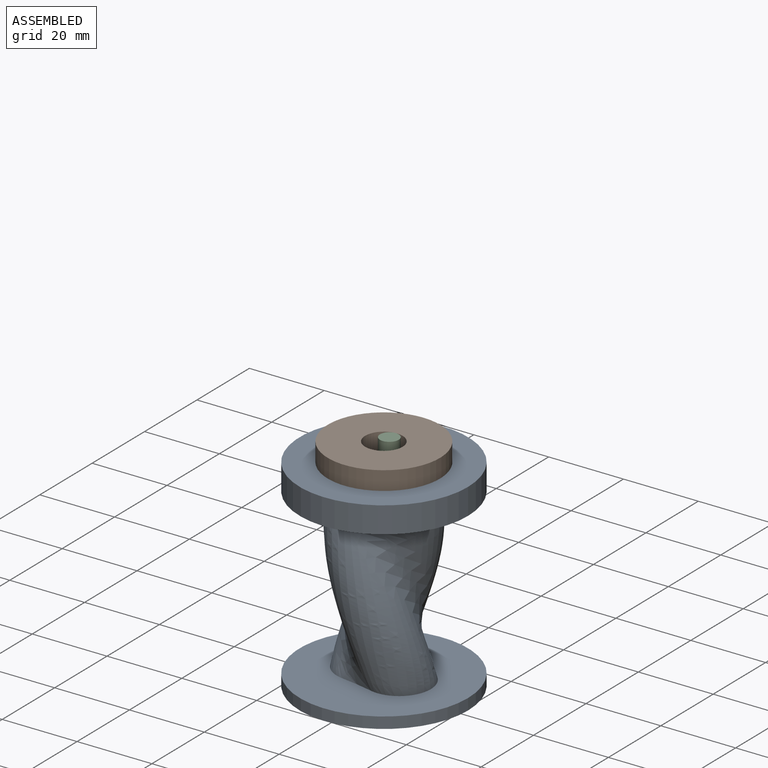
[diagram: assembled view]
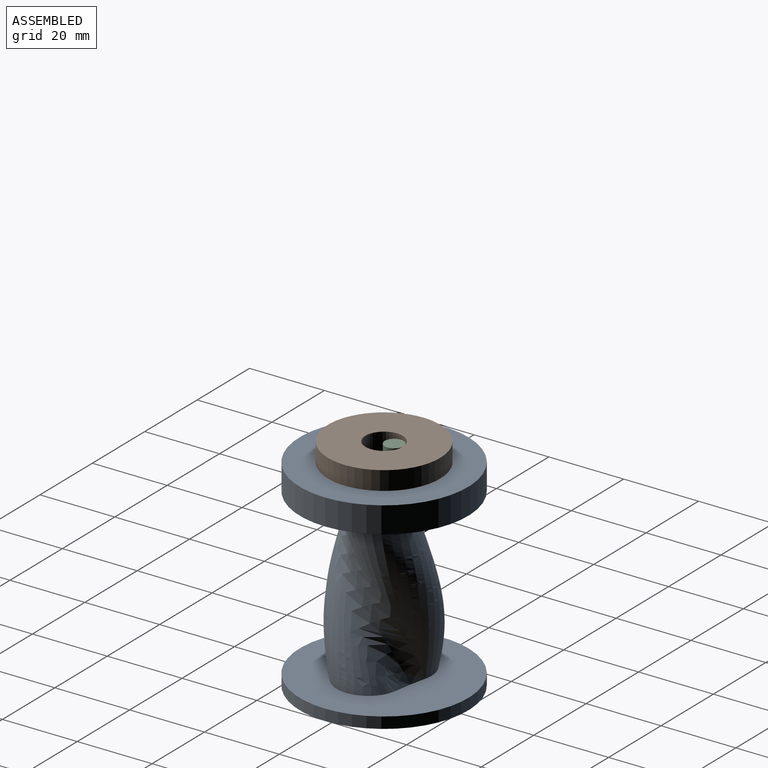
[diagram: assembled view, second angle]
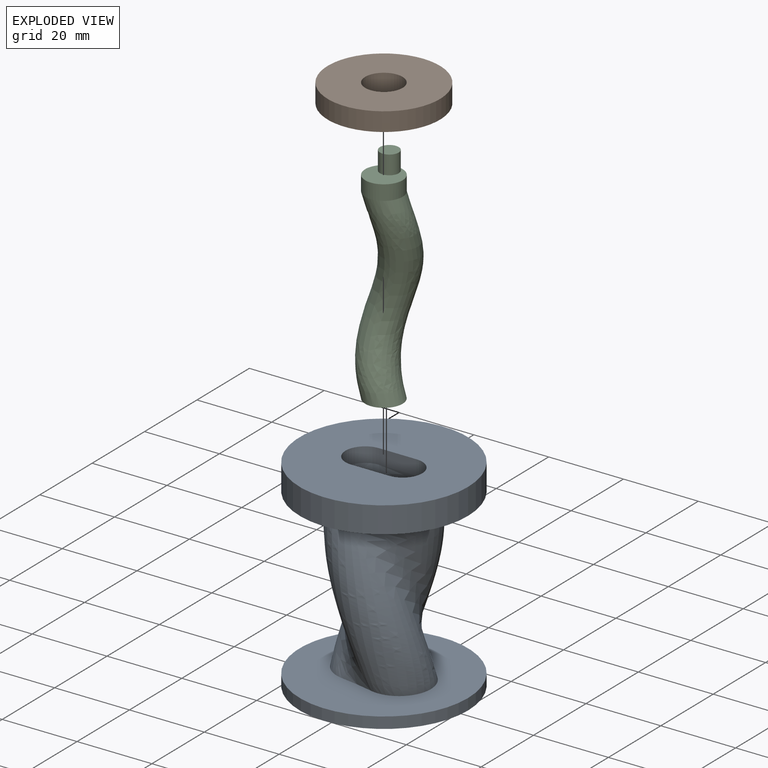
[diagram: exploded view]
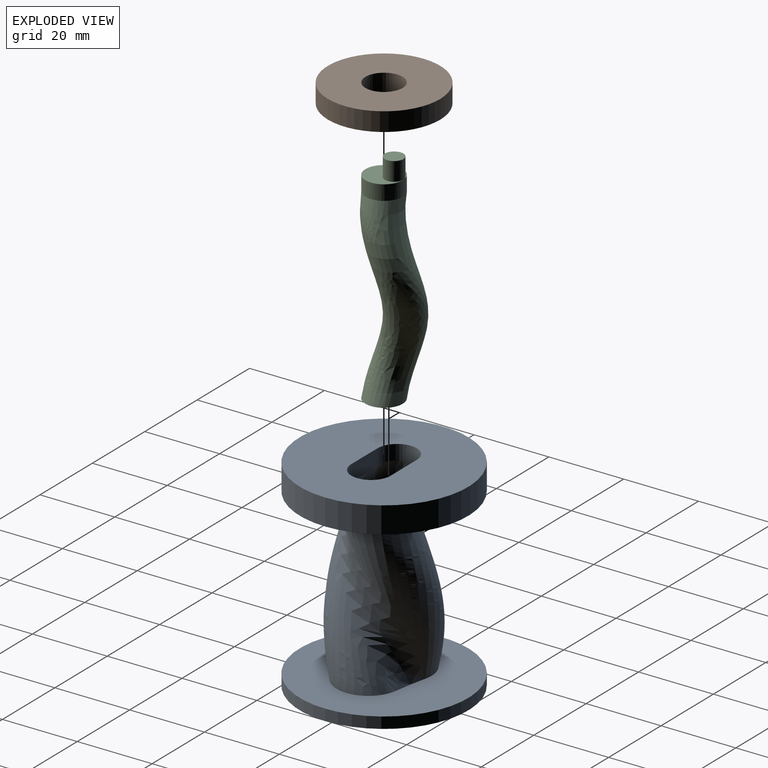
[diagram: exploded view, second angle]
ASSEMBLY  parts=3 mates=2
PART A: 14 faces, bbox 45x45x54 mm
  f0: cylinder r=22.5mm len=45mm, axis (0,0,-1), area 424.1mm2, adj f1,f8
  f1: plane 45x45mm, normal (0,0,-1), area 1398.8mm2, adj f0,f3,f4,f5,f6
  f2: cylinder r=22.5mm len=45mm, axis (0,0,-1), area 989.6mm2, adj f7,f13
  f3: bspline ~50x33.09mm, area 845mm2, adj f1,f4,f6,f10
  f4: bspline ~50x14.57mm, area 508.3mm2, adj f1,f3,f5,f9
  f5: bspline ~50x33.09mm, area 845mm2, adj f1,f4,f6,f12
  f6: bspline ~50x14.57mm, area 508.3mm2, adj f1,f3,f5,f11
  f7: plane 45x45mm, normal (0,0,-1), area 1207mm2, adj f2
  f8: plane 45x45mm, normal (0,0,1), area 1207mm2, adj f0
  f9: plane 10x4mm, normal (0,-1,0), area 40mm2, adj f4,f10,f12,f13
  f10: cylinder r=5.25mm len=10.5mm, axis (0,0,-1), area 66mm2, adj f3,f9,f11,f13
  f11: plane 10x4mm, normal (0,1,0), area 40mm2, adj f6,f10,f12,f13
  f12: cylinder r=5.25mm len=10.5mm, axis (0,0,-1), area 66mm2, adj f5,f9,f11,f13
  f13: plane 45x45mm, normal (0,0,1), area 1398.8mm2, adj f2,f9,f10,f11,f12
PART B: 8 faces, bbox 30x30x5 mm
  f0: plane 15x15mm, normal (0,0,-1), area 98.2mm2, adj f1,f5
  f1: cylinder r=5mm len=10mm, axis (0,0,-1), area 157.1mm2, adj f0,f3
  f2: cylinder r=15mm len=30mm, axis (0,0,-1), area 471.2mm2, adj f3,f4
  f3: plane 30x30mm, normal (0,0,1), area 628.3mm2, adj f1,f2
  f4: plane 30x30mm, normal (0,0,-1), area 216mm2, adj f2,f6
  f5: cylinder r=7.5mm len=15mm, axis (0,0,-1), area 117.8mm2, adj f0,f7
  f6: cylinder r=12.5mm len=25mm, axis (0,0,-1), area 196.3mm2, adj f4,f7
  f7: plane 25x25mm, normal (0,0,-1), area 314.2mm2, adj f5,f6
PART C: 6 faces, bbox 16.4x26.4x60.4 mm
  f0: plane 11.39x11.39mm, normal (0,0,-1), area 78.5mm2, adj f1
  f1: bspline ~50x25mm, area 1608.4mm2, adj f0,f2
  f2: cylinder r=5mm len=10mm, axis (0,0,-1), area 125.7mm2, adj f1,f3
  f3: plane 10x10mm, normal (0,0,1), area 58.9mm2, adj f2,f4
  f4: cylinder r=2.5mm len=5mm, axis (0,0,-1), area 78.5mm2, adj f3,f5
  f5: plane 5x5mm, normal (0,0,1), area 19.6mm2, adj f4
PLACE A at identity fixed
PLACE B rot(axis=(0,0,-1),115.5deg) t=(0,0,0)mm
PLACE C rot(axis=(0,0,-1),83.5deg) t=(-0.56,4.97,0)mm
MATE pin_slot C.f2 <-> A.f0  axis (0,0,1) through (0,0,54)mm
MATE revolute A.f0 <-> B.f2  axis (0,0,-1) through (0,0,54)mm
